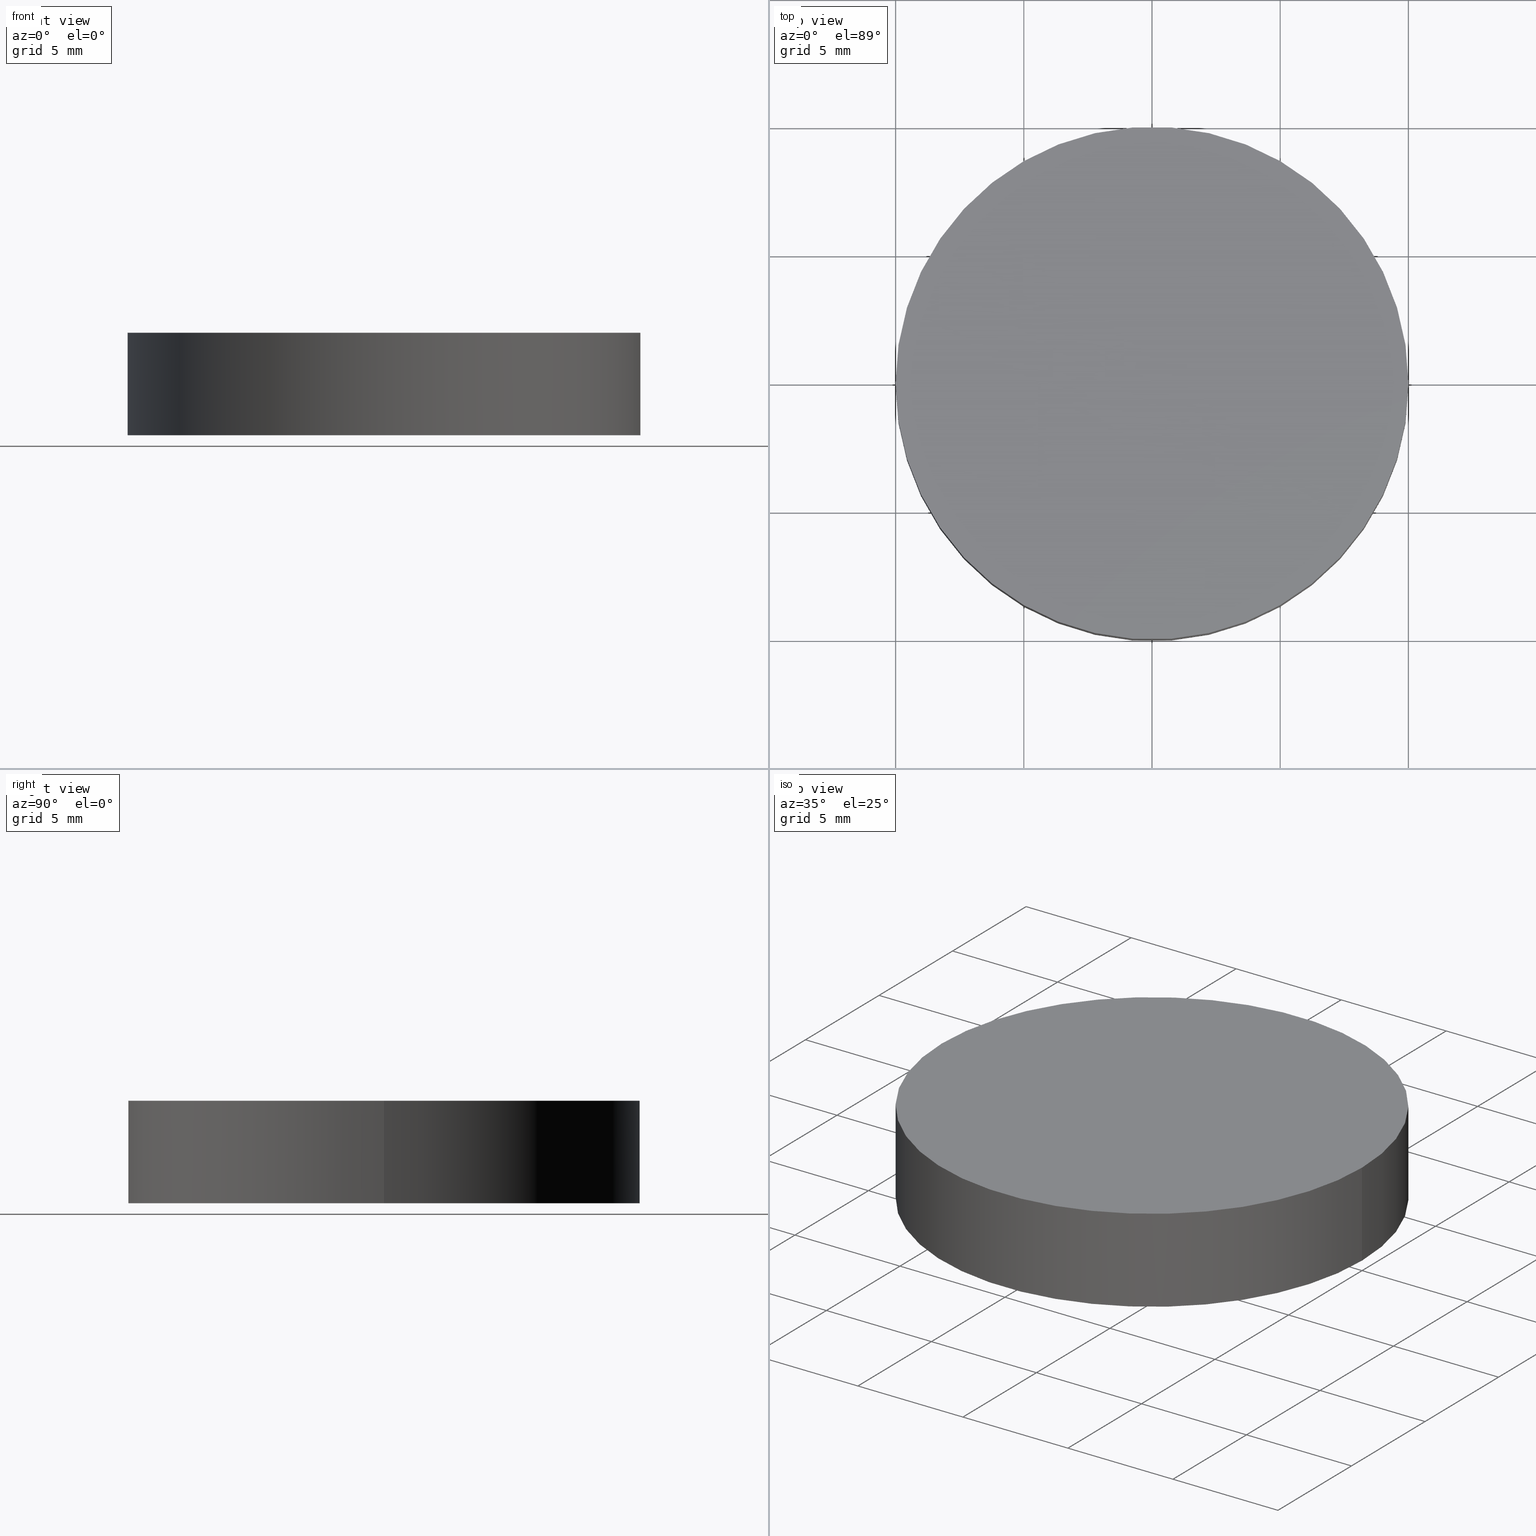
[diagram: canonical four-view strip — front | top / right | iso, engineering-drawing reading convention]
A machine part, canonical four-view strip (front | top / right | iso — engineering-drawing reading convention). The complete STEP part file that produces these views, byte-faithful:
ISO-10303-21;
HEADER;
FILE_DESCRIPTION (( 'STEP AP214' ),
    '1' );
FILE_NAME ('185004.STEP',
    '2019-07-12T01:35:43',
    ( 'user' ),
    ( '΢���й�' ),
    'SwSTEP 2.0',
    'SolidWorks 2016',
    '' );
FILE_SCHEMA (( 'AUTOMOTIVE_DESIGN' ));
ENDSEC;

DATA;
#1 = VERTEX_POINT ( 'NONE', #52 ) ;
#2 = AXIS2_PLACEMENT_3D ( 'NONE', #6, #4, #39 ) ;
#3 = EDGE_LOOP ( 'NONE', ( #108, #114 ) ) ;
#4 = DIRECTION ( 'NONE',  ( -0.0000000000000000000, -0.0000000000000000000, -1.000000000000000000 ) ) ;
#5 = EDGE_CURVE ( 'NONE', #1, #15, #89, .T. ) ;
#6 = CARTESIAN_POINT ( 'NONE',  ( 0.0000000000000000000, 0.0000000000000000000, 4.000000000000000000 ) ) ;
#7 = PRODUCT_DEFINITION_FORMATION_WITH_SPECIFIED_SOURCE ( '�κ�', '', #27, .NOT_KNOWN. ) ;
#8 = ADVANCED_FACE ( 'NONE', ( #121 ), #127, .T. ) ;
#9 = SURFACE_STYLE_USAGE ( .BOTH. , #81 ) ;
#10 = MANIFOLD_SOLID_BREP ( '͹̨-����1', #33 ) ;
#11 =( GEOMETRIC_REPRESENTATION_CONTEXT ( 3 ) GLOBAL_UNCERTAINTY_ASSIGNED_CONTEXT ( ( #130 ) ) GLOBAL_UNIT_ASSIGNED_CONTEXT ( ( #91, #29, #112 ) ) REPRESENTATION_CONTEXT ( 'NONE', 'WORKASPACE' ) );
#12 = EDGE_CURVE ( 'NONE', #70, #15, #109, .T. ) ;
#13 = PRODUCT_RELATED_PRODUCT_CATEGORY ( 'part', '', ( #27 ) ) ;
#14 = UNCERTAINTY_MEASURE_WITH_UNIT (LENGTH_MEASURE( 1.000000000000000100E-005 ), #53, 'distance_accuracy_value', 'NONE');
#15 = VERTEX_POINT ( 'NONE', #48 ) ;
#16 = COLOUR_RGB ( '',1.000000000000000000, 1.000000000000000000, 1.000000000000000000 ) ;
#17 = DIRECTION ( 'NONE',  ( 1.000000000000000000, 0.0000000000000000000, -0.0000000000000000000 ) ) ;
#18 =( NAMED_UNIT ( * ) SI_UNIT ( $, .STERADIAN. ) SOLID_ANGLE_UNIT ( ) );
#19 = CARTESIAN_POINT ( 'NONE',  ( 0.0000000000000000000, 0.0000000000000000000, 0.0000000000000000000 ) ) ;
#20 = ORIENTED_EDGE ( 'NONE', *, *, #12, .T. ) ;
#21 = CARTESIAN_POINT ( 'NONE',  ( -10.00000000000000000, 0.0000000000000000000, 4.000000000000000000 ) ) ;
#22 = FILL_AREA_STYLE_COLOUR ( '', #63 ) ;
#23 = APPLICATION_PROTOCOL_DEFINITION ( 'draft international standard', 'automotive_design', 1998, #85 ) ;
#24 = EDGE_CURVE ( 'NONE', #37, #1, #96, .T. ) ;
#25 = SURFACE_STYLE_FILL_AREA ( #42 ) ;
#26 = PRODUCT_DEFINITION_CONTEXT ( 'detailed design', #85, 'design' ) ;
#27 = PRODUCT ( '185004', '185004', '', ( #119 ) ) ;
#28 = DIRECTION ( 'NONE',  ( -0.0000000000000000000, -0.0000000000000000000, -1.000000000000000000 ) ) ;
#29 =( NAMED_UNIT ( * ) PLANE_ANGLE_UNIT ( ) SI_UNIT ( $, .RADIAN. ) );
#30 = CYLINDRICAL_SURFACE ( 'NONE', #2, 10.00000000000000000 ) ;
#31 = DIRECTION ( 'NONE',  ( -0.0000000000000000000, -0.0000000000000000000, -1.000000000000000000 ) ) ;
#32 = CARTESIAN_POINT ( 'NONE',  ( 0.0000000000000000000, 0.0000000000000000000, 4.000000000000000000 ) ) ;
#33 = CLOSED_SHELL ( 'NONE', ( #135, #94, #8, #51 ) ) ;
#34 = DIRECTION ( 'NONE',  ( 1.000000000000000000, 0.0000000000000000000, 0.0000000000000000000 ) ) ;
#35 = DIRECTION ( 'NONE',  ( 1.000000000000000000, 0.0000000000000000000, -0.0000000000000000000 ) ) ;
#36 = CIRCLE ( 'NONE', #66, 10.00000000000000000 ) ;
#37 = VERTEX_POINT ( 'NONE', #111 ) ;
#38 = PRESENTATION_STYLE_ASSIGNMENT (( #9 ) ) ;
#39 = DIRECTION ( 'NONE',  ( -1.000000000000000000, 0.0000000000000000000, 0.0000000000000000000 ) ) ;
#40 = CIRCLE ( 'NONE', #84, 10.00000000000000000 ) ;
#41 = APPLICATION_CONTEXT ( 'automotive_design' ) ;
#42 = FILL_AREA_STYLE ('',( #113 ) ) ;
#43 = DIRECTION ( 'NONE',  ( 1.000000000000000000, 0.0000000000000000000, 0.0000000000000000000 ) ) ;
#44 = DIRECTION ( 'NONE',  ( 0.0000000000000000000, 0.0000000000000000000, 1.000000000000000000 ) ) ;
#45 = AXIS2_PLACEMENT_3D ( 'NONE', #49, #125, #61 ) ;
#46 =( NAMED_UNIT ( * ) SI_UNIT ( $, .STERADIAN. ) SOLID_ANGLE_UNIT ( ) );
#47 = EDGE_LOOP ( 'NONE', ( #88, #131 ) ) ;
#48 = CARTESIAN_POINT ( 'NONE',  ( -10.00000000000000000, 0.0000000000000000000, 0.0000000000000000000 ) ) ;
#49 = CARTESIAN_POINT ( 'NONE',  ( 0.0000000000000000000, 0.0000000000000000000, 0.0000000000000000000 ) ) ;
#50 = DIRECTION ( 'NONE',  ( -1.000000000000000000, 0.0000000000000000000, 0.0000000000000000000 ) ) ;
#51 = ADVANCED_FACE ( 'NONE', ( #117 ), #123, .F. ) ;
#52 = CARTESIAN_POINT ( 'NONE',  ( 10.00000000000000000, 1.224646799147353300E-015, 0.0000000000000000000 ) ) ;
#53 =( LENGTH_UNIT ( ) NAMED_UNIT ( * ) SI_UNIT ( .MILLI., .METRE. ) );
#54 = DIRECTION ( 'NONE',  ( 1.000000000000000000, 0.0000000000000000000, 0.0000000000000000000 ) ) ;
#55 = ORIENTED_EDGE ( 'NONE', *, *, #87, .F. ) ;
#56 = VECTOR ( 'NONE', #28, 1000.000000000000000 ) ;
#57 = ORIENTED_EDGE ( 'NONE', *, *, #24, .F. ) ;
#58 = SURFACE_STYLE_FILL_AREA ( #69 ) ;
#59 =( GEOMETRIC_REPRESENTATION_CONTEXT ( 3 ) GLOBAL_UNCERTAINTY_ASSIGNED_CONTEXT ( ( #99 ) ) GLOBAL_UNIT_ASSIGNED_CONTEXT ( ( #82, #77, #18 ) ) REPRESENTATION_CONTEXT ( 'NONE', 'WORKASPACE' ) );
#60 = CARTESIAN_POINT ( 'NONE',  ( 10.00000000000000000, 1.224646799147353300E-015, 4.000000000000000000 ) ) ;
#61 = DIRECTION ( 'NONE',  ( 1.000000000000000000, 0.0000000000000000000, 0.0000000000000000000 ) ) ;
#62 = ORIENTED_EDGE ( 'NONE', *, *, #24, .T. ) ;
#63 = COLOUR_RGB ( '',1.000000000000000000, 1.000000000000000000, 1.000000000000000000 ) ;
#64 = AXIS2_PLACEMENT_3D ( 'NONE', #100, #76, #17 ) ;
#65 =( NAMED_UNIT ( * ) PLANE_ANGLE_UNIT ( ) SI_UNIT ( $, .RADIAN. ) );
#66 = AXIS2_PLACEMENT_3D ( 'NONE', #80, #92, #34 ) ;
#67 = AXIS2_PLACEMENT_3D ( 'NONE', #133, #44, #104 ) ;
#68 = EDGE_LOOP ( 'NONE', ( #98, #62, #86, #118 ) ) ;
#69 = FILL_AREA_STYLE ('',( #22 ) ) ;
#70 = VERTEX_POINT ( 'NONE', #90 ) ;
#71 = MECHANICAL_DESIGN_GEOMETRIC_PRESENTATION_REPRESENTATION (  '', ( #138 ), #59 ) ;
#72 = PRESENTATION_LAYER_ASSIGNMENT (  '', '', ( #138 ) ) ;
#73 = DIRECTION ( 'NONE',  ( 0.0000000000000000000, 0.0000000000000000000, 1.000000000000000000 ) ) ;
#74 = ORIENTED_EDGE ( 'NONE', *, *, #128, .T. ) ;
#75 = EDGE_LOOP ( 'NONE', ( #57, #55, #20, #74 ) ) ;
#76 = DIRECTION ( 'NONE',  ( 0.0000000000000000000, 0.0000000000000000000, 1.000000000000000000 ) ) ;
#77 =( NAMED_UNIT ( * ) PLANE_ANGLE_UNIT ( ) SI_UNIT ( $, .RADIAN. ) );
#78 = AXIS2_PLACEMENT_3D ( 'NONE', #126, #31, #50 ) ;
#79 = FACE_OUTER_BOUND ( 'NONE', #75, .T. ) ;
#80 = CARTESIAN_POINT ( 'NONE',  ( 0.0000000000000000000, 0.0000000000000000000, 4.000000000000000000 ) ) ;
#81 = SURFACE_SIDE_STYLE ('',( #58 ) ) ;
#82 =( LENGTH_UNIT ( ) NAMED_UNIT ( * ) SI_UNIT ( .MILLI., .METRE. ) );
#83 = FACE_OUTER_BOUND ( 'NONE', #68, .T. ) ;
#84 = AXIS2_PLACEMENT_3D ( 'NONE', #32, #115, #43 ) ;
#85 = APPLICATION_CONTEXT ( 'automotive_design' ) ;
#86 = ORIENTED_EDGE ( 'NONE', *, *, #5, .T. ) ;
#87 = EDGE_CURVE ( 'NONE', #70, #37, #36, .T. ) ;
#88 = ORIENTED_EDGE ( 'NONE', *, *, #87, .T. ) ;
#89 = CIRCLE ( 'NONE', #67, 10.00000000000000000 ) ;
#90 = CARTESIAN_POINT ( 'NONE',  ( -10.00000000000000000, 0.0000000000000000000, 4.000000000000000000 ) ) ;
#91 =( LENGTH_UNIT ( ) NAMED_UNIT ( * ) SI_UNIT ( .MILLI., .METRE. ) );
#92 = DIRECTION ( 'NONE',  ( 0.0000000000000000000, 0.0000000000000000000, 1.000000000000000000 ) ) ;
#93 = DIRECTION ( 'NONE',  ( 0.0000000000000000000, 0.0000000000000000000, 1.000000000000000000 ) ) ;
#94 = ADVANCED_FACE ( 'NONE', ( #79 ), #30, .T. ) ;
#95 = AXIS2_PLACEMENT_3D ( 'NONE', #136, #93, #35 ) ;
#96 = LINE ( 'NONE', #60, #56 ) ;
#97 = PRESENTATION_LAYER_ASSIGNMENT (  '', '', ( #103 ) ) ;
#98 = ORIENTED_EDGE ( 'NONE', *, *, #105, .F. ) ;
#99 = UNCERTAINTY_MEASURE_WITH_UNIT (LENGTH_MEASURE( 1.000000000000000100E-005 ), #82, 'distance_accuracy_value', 'NONE');
#100 = CARTESIAN_POINT ( 'NONE',  ( 0.0000000000000000000, 0.0000000000000000000, 0.0000000000000000000 ) ) ;
#101 = MECHANICAL_DESIGN_GEOMETRIC_PRESENTATION_REPRESENTATION (  '', ( #103 ), #106 ) ;
#102 = SURFACE_SIDE_STYLE ('',( #25 ) ) ;
#103 = STYLED_ITEM ( 'NONE', ( #129 ), #110 ) ;
#104 = DIRECTION ( 'NONE',  ( 1.000000000000000000, 0.0000000000000000000, 0.0000000000000000000 ) ) ;
#105 = EDGE_CURVE ( 'NONE', #37, #70, #40, .T. ) ;
#106 =( GEOMETRIC_REPRESENTATION_CONTEXT ( 3 ) GLOBAL_UNCERTAINTY_ASSIGNED_CONTEXT ( ( #14 ) ) GLOBAL_UNIT_ASSIGNED_CONTEXT ( ( #53, #65, #46 ) ) REPRESENTATION_CONTEXT ( 'NONE', 'WORKASPACE' ) );
#107 = SHAPE_DEFINITION_REPRESENTATION ( #120, #110 ) ;
#108 = ORIENTED_EDGE ( 'NONE', *, *, #128, .F. ) ;
#109 = LINE ( 'NONE', #21, #122 ) ;
#110 = ADVANCED_BREP_SHAPE_REPRESENTATION ( '185004', ( #10, #132 ), #11 ) ;
#111 = CARTESIAN_POINT ( 'NONE',  ( 10.00000000000000000, 1.224646799147353300E-015, 4.000000000000000000 ) ) ;
#112 =( NAMED_UNIT ( * ) SI_UNIT ( $, .STERADIAN. ) SOLID_ANGLE_UNIT ( ) );
#113 = FILL_AREA_STYLE_COLOUR ( '', #16 ) ;
#114 = ORIENTED_EDGE ( 'NONE', *, *, #5, .F. ) ;
#115 = DIRECTION ( 'NONE',  ( 0.0000000000000000000, 0.0000000000000000000, 1.000000000000000000 ) ) ;
#116 = DIRECTION ( 'NONE',  ( -0.0000000000000000000, -0.0000000000000000000, -1.000000000000000000 ) ) ;
#117 = FACE_OUTER_BOUND ( 'NONE', #3, .T. ) ;
#118 = ORIENTED_EDGE ( 'NONE', *, *, #12, .F. ) ;
#119 = PRODUCT_CONTEXT ( 'NONE', #41, 'mechanical' ) ;
#120 = PRODUCT_DEFINITION_SHAPE ( 'NONE', 'NONE',  #140 ) ;
#121 = FACE_OUTER_BOUND ( 'NONE', #47, .T. ) ;
#122 = VECTOR ( 'NONE', #116, 1000.000000000000000 ) ;
#123 = PLANE ( 'NONE',  #64 ) ;
#124 = APPLICATION_PROTOCOL_DEFINITION ( 'draft international standard', 'automotive_design', 1998, #41 ) ;
#125 = DIRECTION ( 'NONE',  ( 0.0000000000000000000, 0.0000000000000000000, 1.000000000000000000 ) ) ;
#126 = CARTESIAN_POINT ( 'NONE',  ( 0.0000000000000000000, 0.0000000000000000000, 4.000000000000000000 ) ) ;
#127 = PLANE ( 'NONE',  #95 ) ;
#128 = EDGE_CURVE ( 'NONE', #15, #1, #139, .T. ) ;
#129 = PRESENTATION_STYLE_ASSIGNMENT (( #137 ) ) ;
#130 = UNCERTAINTY_MEASURE_WITH_UNIT (LENGTH_MEASURE( 1.000000000000000100E-005 ), #91, 'distance_accuracy_value', 'NONE');
#131 = ORIENTED_EDGE ( 'NONE', *, *, #105, .T. ) ;
#132 = AXIS2_PLACEMENT_3D ( 'NONE', #19, #73, #54 ) ;
#133 = CARTESIAN_POINT ( 'NONE',  ( 0.0000000000000000000, 0.0000000000000000000, 0.0000000000000000000 ) ) ;
#134 = CYLINDRICAL_SURFACE ( 'NONE', #78, 10.00000000000000000 ) ;
#135 = ADVANCED_FACE ( 'NONE', ( #83 ), #134, .T. ) ;
#136 = CARTESIAN_POINT ( 'NONE',  ( 0.0000000000000000000, 0.0000000000000000000, 4.000000000000000000 ) ) ;
#137 = SURFACE_STYLE_USAGE ( .BOTH. , #102 ) ;
#138 = STYLED_ITEM ( 'NONE', ( #38 ), #10 ) ;
#139 = CIRCLE ( 'NONE', #45, 10.00000000000000000 ) ;
#140 = PRODUCT_DEFINITION ( 'δ֪', '', #7, #26 ) ;
ENDSEC;
END-ISO-10303-21;
